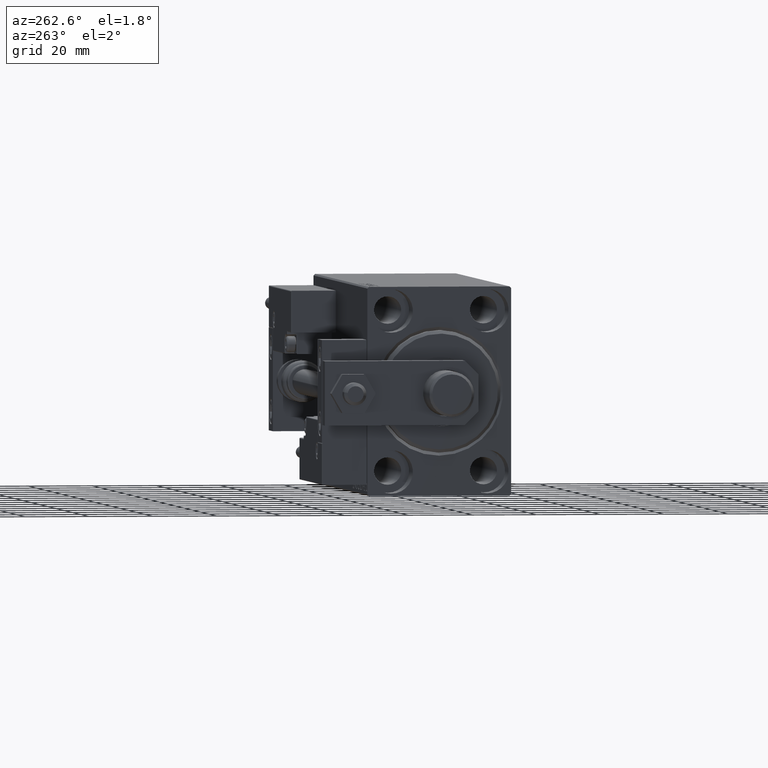
[diagram: clean part render]
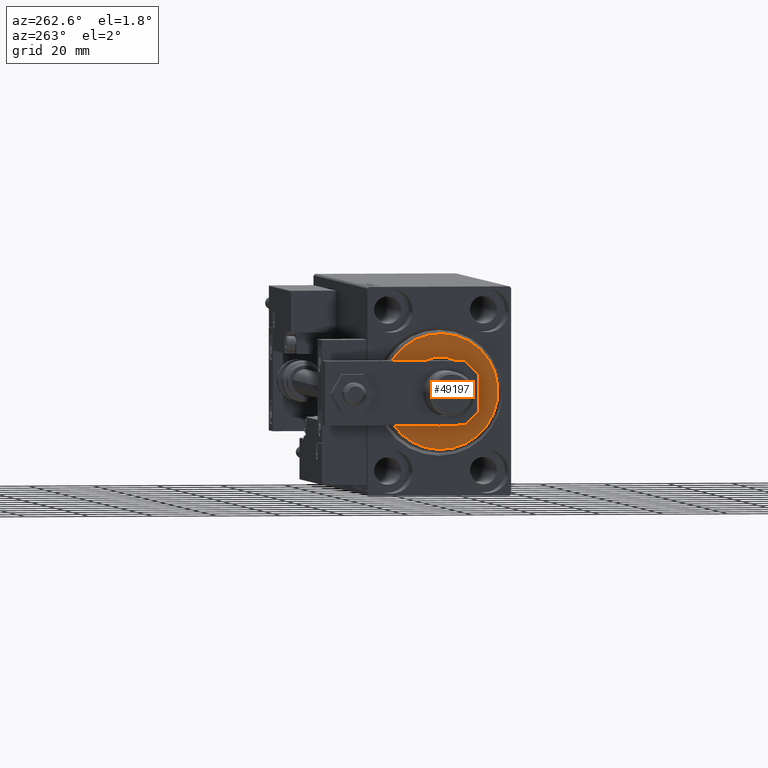
[diagram: same view with one face highlighted and labeled with its STEP entity id]
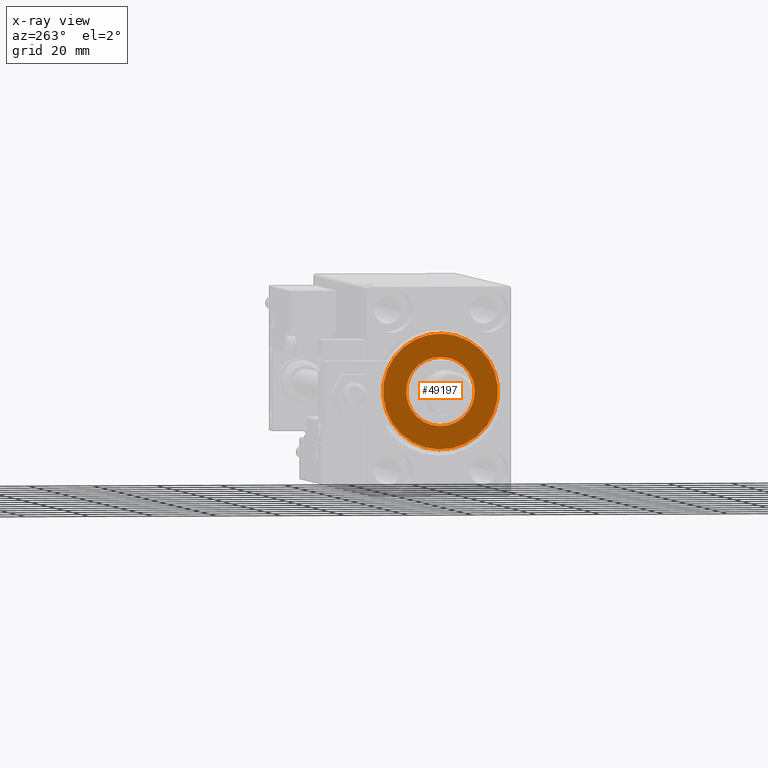
[diagram: x-ray of the same camera — body ghosted, the highlighted face saturated]
A machine part, auxiliary view. The second image highlights one B-rep face of the part: STEP entity #49197.
The next image is the same camera in x-ray: the body ghosted, the highlighted face saturated — about 0% of this face is hidden behind the body in this view.
In plain terms, the highlighted planar face has unit normal (-1, 0, 0).
Its self-contained STEP definition (entity closure, byte-faithful):
#2853 = CIRCLE ( 'NONE', #26662, 17.99999999999999645 ) ;
#3833 = CIRCLE ( 'NONE', #5487, 10.75000000000000000 ) ;
#5461 = VERTEX_POINT ( 'NONE', #49724 ) ;
#5487 = AXIS2_PLACEMENT_3D ( 'NONE', #37172, #29227, #21006 ) ;
#8068 = AXIS2_PLACEMENT_3D ( 'NONE', #29368, #33472, #49109 ) ;
#8182 = CARTESIAN_POINT ( 'NONE',  ( 3.000000000000000000, 0.000000000000000000, 0.000000000000000000 ) ) ;
#8446 = DIRECTION ( 'NONE',  ( 0.000000000000000000, 0.000000000000000000, -1.000000000000000000 ) ) ;
#11802 = DIRECTION ( 'NONE',  ( 1.000000000000000000, -0.000000000000000000, 0.000000000000000000 ) ) ;
#12056 = PLANE ( 'NONE',  #13197 ) ;
#13197 = AXIS2_PLACEMENT_3D ( 'NONE', #8182, #11802, #8446 ) ;
#13635 = EDGE_CURVE ( 'NONE', #36502, #5461, #2853, .T. ) ;
#19737 = VERTEX_POINT ( 'NONE', #22023 ) ;
#20265 = CIRCLE ( 'NONE', #39904, 10.75000000000000000 ) ;
#21006 = DIRECTION ( 'NONE',  ( 0.000000000000000000, 0.000000000000000000, -1.000000000000000000 ) ) ;
#21564 = CARTESIAN_POINT ( 'NONE',  ( 3.000000000000000000, 0.000000000000000000, 17.99999999999999645 ) ) ;
#21939 = EDGE_LOOP ( 'NONE', ( #41565, #41761 ) ) ;
#22023 = CARTESIAN_POINT ( 'NONE',  ( 3.000000000000000000, 1.316495309083404223E-15, -10.75000000000000000 ) ) ;
#23035 = EDGE_CURVE ( 'NONE', #19737, #36364, #20265, .T. ) ;
#23195 = EDGE_CURVE ( 'NONE', #36364, #19737, #3833, .T. ) ;
#24521 = CIRCLE ( 'NONE', #8068, 17.99999999999999645 ) ;
#25463 = DIRECTION ( 'NONE',  ( 1.000000000000000000, -0.000000000000000000, 0.000000000000000000 ) ) ;
#26662 = AXIS2_PLACEMENT_3D ( 'NONE', #44703, #25463, #40095 ) ;
#27804 = EDGE_CURVE ( 'NONE', #5461, #36502, #24521, .T. ) ;
#29227 = DIRECTION ( 'NONE',  ( -1.000000000000000000, 0.000000000000000000, -0.000000000000000000 ) ) ;
#29368 = CARTESIAN_POINT ( 'NONE',  ( 3.000000000000000000, 0.000000000000000000, 0.000000000000000000 ) ) ;
#29372 = DIRECTION ( 'NONE',  ( 0.000000000000000000, 0.000000000000000000, -1.000000000000000000 ) ) ;
#31594 = CARTESIAN_POINT ( 'NONE',  ( 3.000000000000000000, 0.000000000000000000, 10.75000000000000000 ) ) ;
#32360 = EDGE_LOOP ( 'NONE', ( #43100, #46467 ) ) ;
#33472 = DIRECTION ( 'NONE',  ( 1.000000000000000000, -0.000000000000000000, 0.000000000000000000 ) ) ;
#36364 = VERTEX_POINT ( 'NONE', #31594 ) ;
#36502 = VERTEX_POINT ( 'NONE', #21564 ) ;
#37172 = CARTESIAN_POINT ( 'NONE',  ( 3.000000000000000000, 0.000000000000000000, 0.000000000000000000 ) ) ;
#39904 = AXIS2_PLACEMENT_3D ( 'NONE', #48344, #48605, #29372 ) ;
#40024 = FACE_OUTER_BOUND ( 'NONE', #32360, .T. ) ;
#40095 = DIRECTION ( 'NONE',  ( 0.000000000000000000, 0.000000000000000000, -1.000000000000000000 ) ) ;
#41565 = ORIENTED_EDGE ( 'NONE', *, *, #23195, .T. ) ;
#41761 = ORIENTED_EDGE ( 'NONE', *, *, #23035, .T. ) ;
#43100 = ORIENTED_EDGE ( 'NONE', *, *, #13635, .T. ) ;
#44703 = CARTESIAN_POINT ( 'NONE',  ( 3.000000000000000000, 0.000000000000000000, 0.000000000000000000 ) ) ;
#46467 = ORIENTED_EDGE ( 'NONE', *, *, #27804, .T. ) ;
#47450 = FACE_BOUND ( 'NONE', #21939, .T. ) ;
#48344 = CARTESIAN_POINT ( 'NONE',  ( 3.000000000000000000, 0.000000000000000000, 0.000000000000000000 ) ) ;
#48605 = DIRECTION ( 'NONE',  ( -1.000000000000000000, 0.000000000000000000, -0.000000000000000000 ) ) ;
#49109 = DIRECTION ( 'NONE',  ( 0.000000000000000000, 0.000000000000000000, -1.000000000000000000 ) ) ;
#49197 = ADVANCED_FACE ( 'NONE', ( #40024, #47450 ), #12056, .T. ) ;
#49724 = CARTESIAN_POINT ( 'NONE',  ( 3.000000000000000000, 2.265596578422603002E-15, -17.99999999999999645 ) ) ;